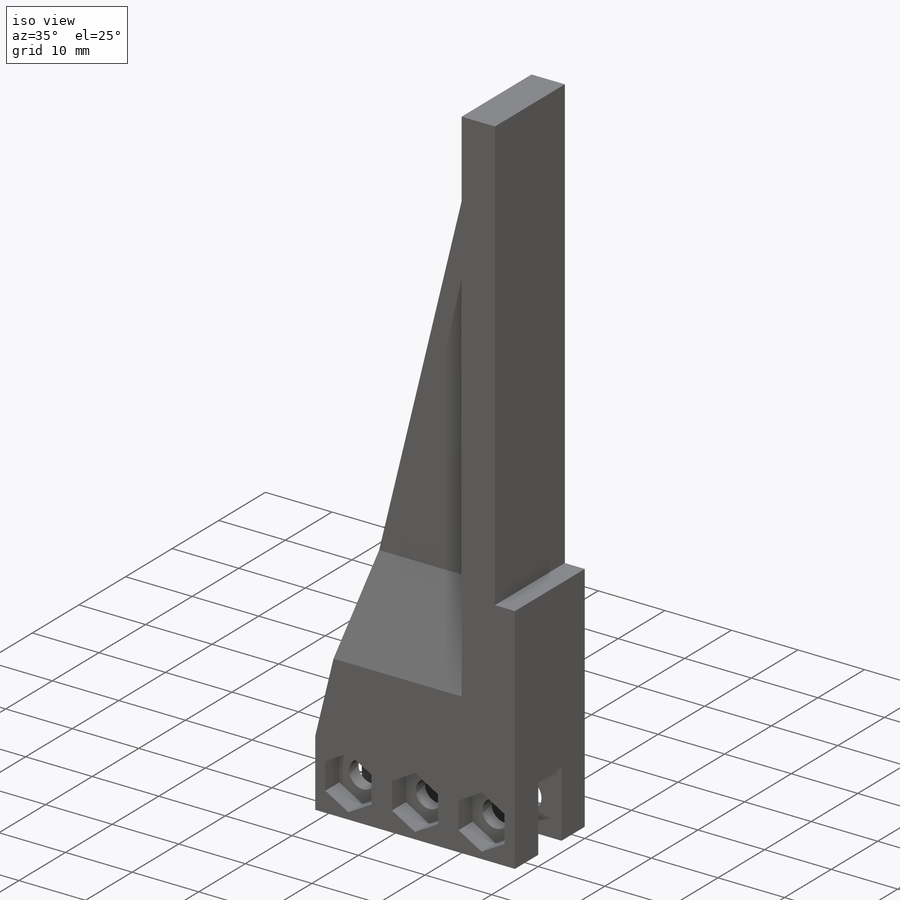
[diagram: iso view]
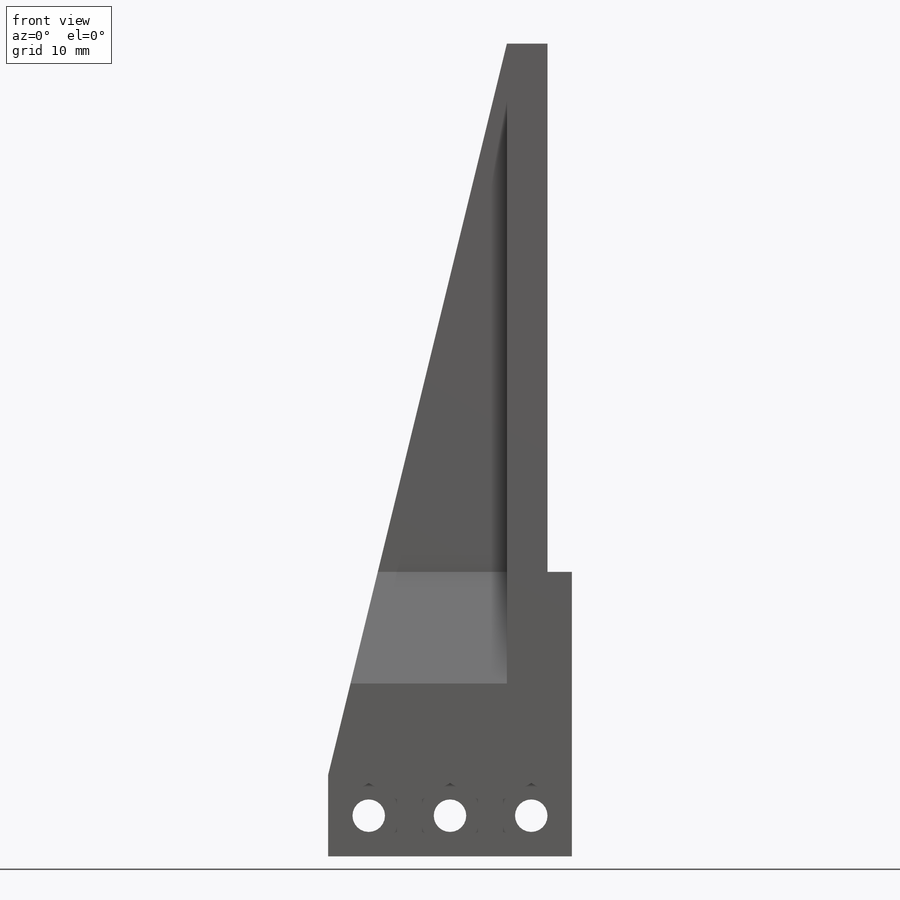
[diagram: front view]
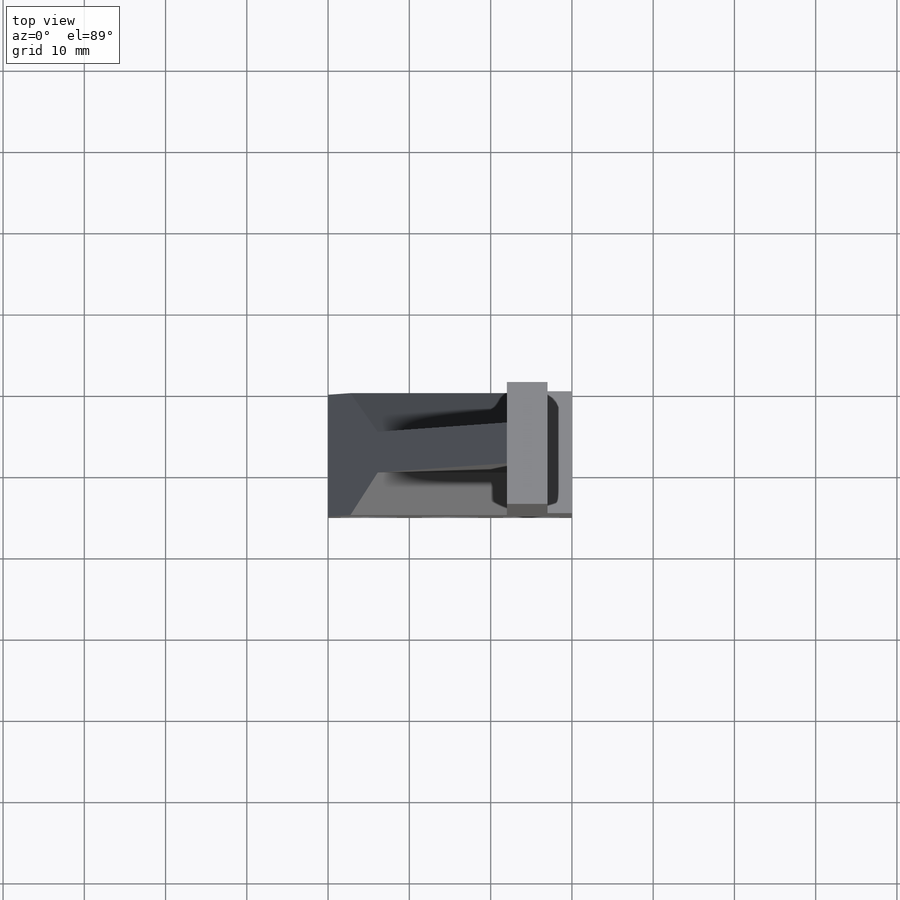
[diagram: top view]
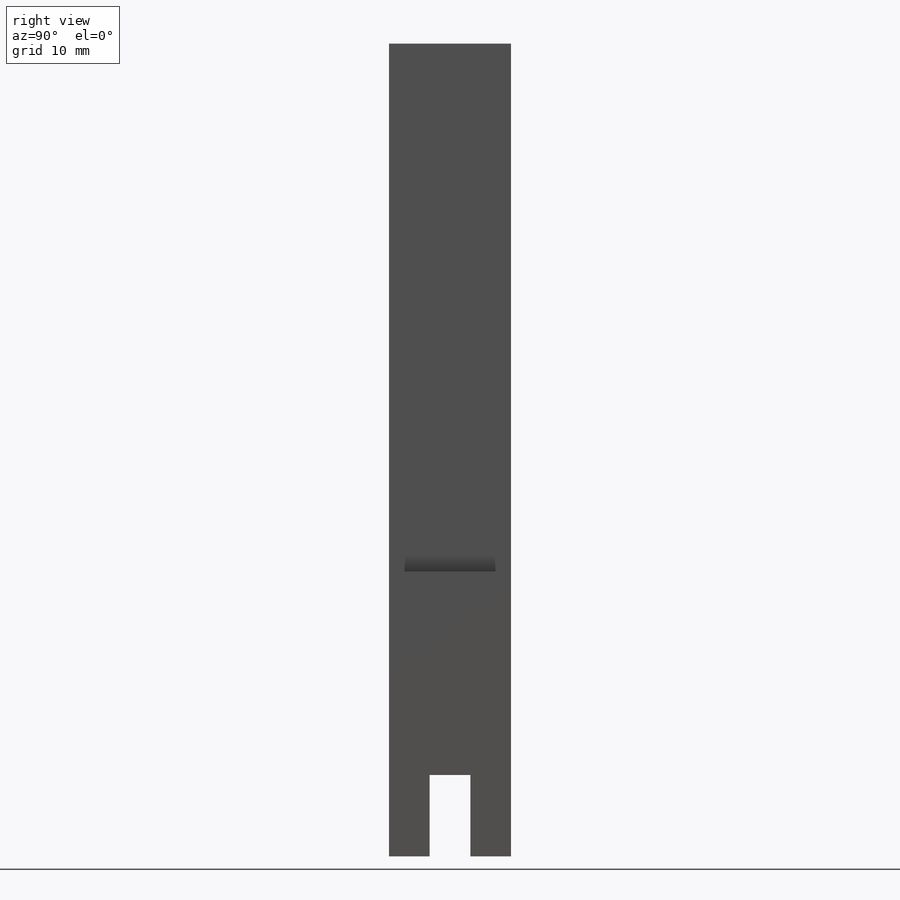
[diagram: right view]
SOLIDWORKS PART (.sldprt)
format: sldprt  version: not decoded by parser v0  size: 279,552 bytes
history: native  units: mm
features: sketch x7, cut_extrude x4, chamfer x2, material x1, extrude x1, hole x1 + 1 further entry (+11 scaffold rows collapsed)
feature tree (28):
  scaffold x11  (default folders/planes/origin — collapsed)
  material  "Material <not specified>"
  "Annotations"  RD1=8mm RD2=4mm
  sketch  "Sketch1"  dims[c1.D5=~11.101611mm c1.D6=~31.101611mm c2.D5=30.0mm c2.D6=10.0mm c2.D7=65.0mm c2.D1=5.0mm c2.D2=5.0mm c2.D3=5.0mm c2.D4=10.0mm c3.D7=5.0mm c3.D8=65.0mm c4.D7=5.0mm]
  extrude  "Boss-Extrude1"  Depth=15mm
  hole  "CBORE for M4 Hex Head Machine Screw1"  Diameter=4mm Depth=15mm
  sketch  "Sketch5"
  sketch  "Sketch4"  dims[hole-wizard template sketch: 41 standard entries collapsed; hole parameters kept: c12.Thru Hole Dia.=4.0mm c12.Thru Hole Depth=15.0mm c12.C'Bore Dia.=8.0mm c12.C'Bore Depth=3.0mm]
  sketch  "Sketch6"  dims[c1.D1=~4.004816mm c2.D1=3.0]
  cut_extrude  "Cut-Extrude1"  Depth=3mm
  sketch  "Sketch7"  dims[D1=2.5mm]
  cut_extrude  "Cut-Extrude2"  [1 undecoded]
  sketch  "Sketch8"  dims[D1=5.0mm D2=25.0mm]
  cut_extrude  "Cut-Extrude3"  Depth=5mm
  sketch  "Sketch9"
  cut_extrude  "Cut-Extrude4"  Depth=5mm
  chamfer  "Chamfer1"  Distance=5mm Angle=70deg
  chamfer  "Chamfer2"  Distance=5mm Angle=70deg
decode coverage: 12 of 15 modeling features carry decoded parameters; 1 rows unclassified (native names shown)
note: ~ marks probable driven/reference dimensions
note: 1 parameter value undecoded
note: suppression state not decoded; provenance and decode notes live in map.json
